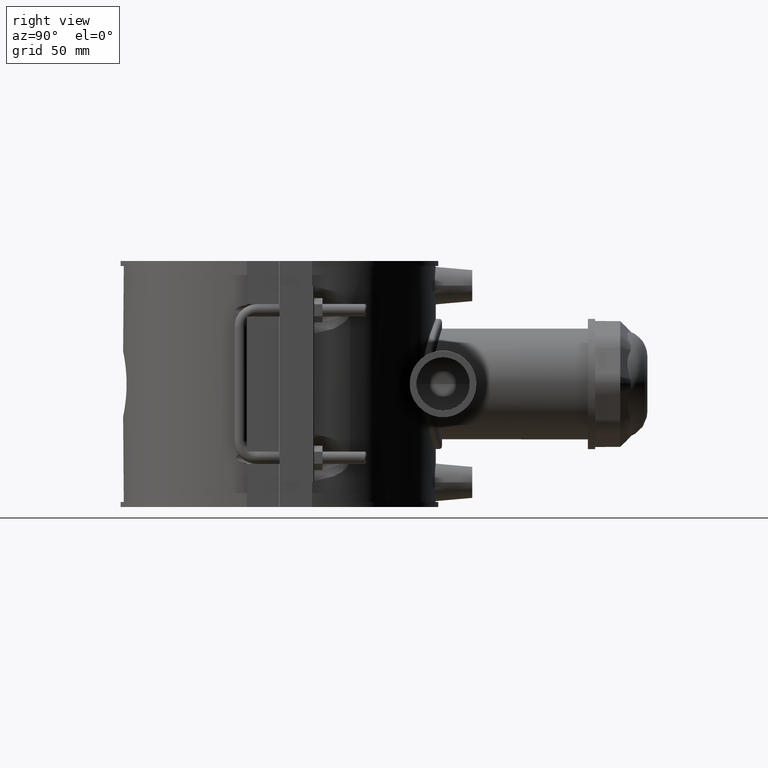
[diagram: clean part render]
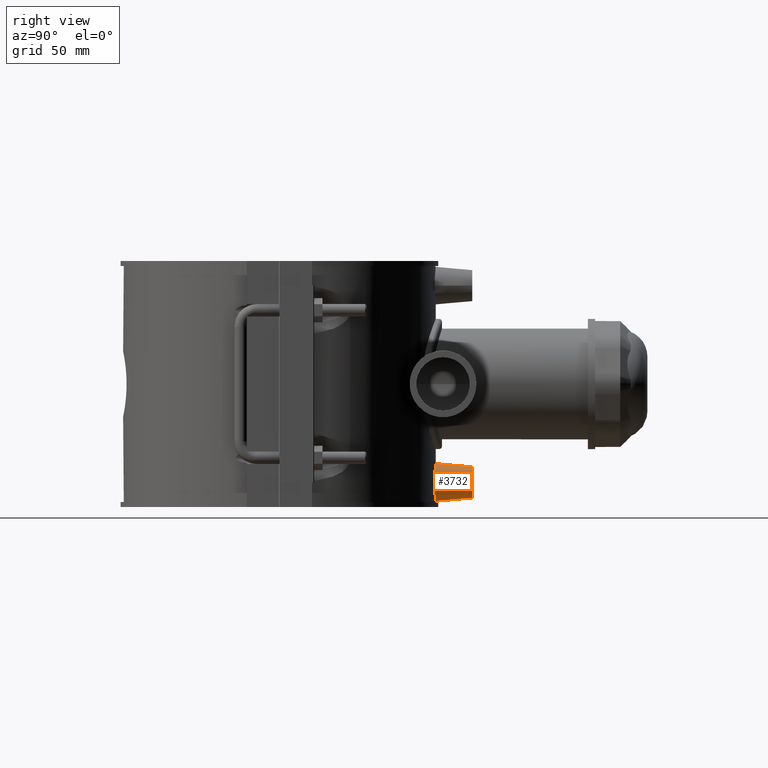
[diagram: same view with one face highlighted and labeled with its STEP entity id]
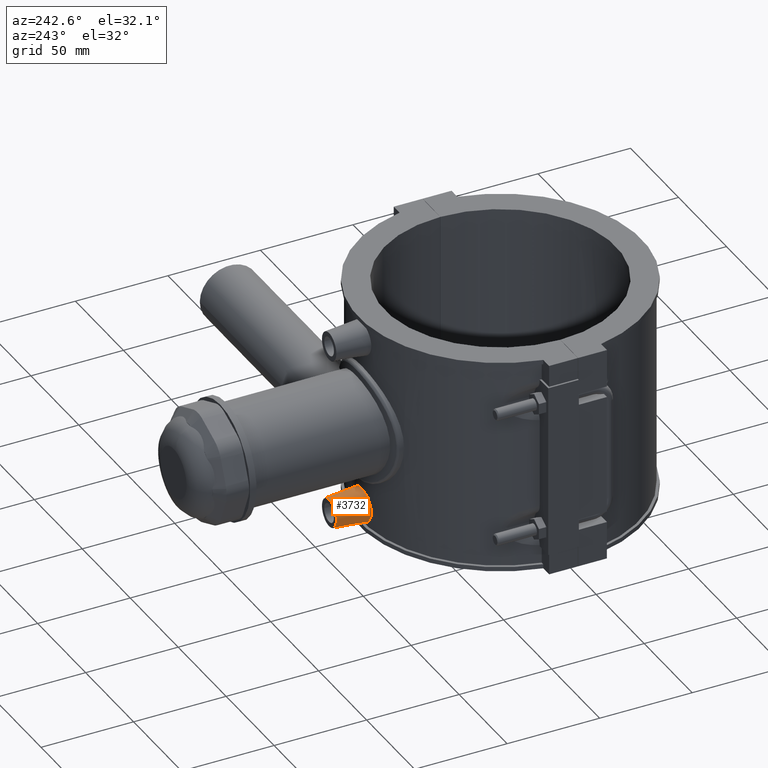
[diagram: same view with one face highlighted and labeled with its STEP entity id]
A machine part, right view. The second image highlights one B-rep face of the part: STEP entity #3732.
A second angle (auxiliary view) of the same face is appended — the face is thin or edge-on in the first view.
In plain terms, the highlighted conical surface has half-angle 5 deg.
Its self-contained STEP definition (entity closure, byte-faithful):
#652=CONICAL_SURFACE('',#4011,7.5,5.);
#854=CIRCLE('',#4010,7.5);
#933=FACE_BOUND('',#1336,.T.);
#1083=FACE_OUTER_BOUND('',#1335,.T.);
#1335=EDGE_LOOP('',(#3064));
#1336=EDGE_LOOP('',(#3065));
#1511=B_SPLINE_CURVE_WITH_KNOTS('',3,(#6287,#6288,#6289,#6290,#6291,#6292,
#6293,#6294,#6295,#6296,#6297,#6298,#6299,#6300,#6301,#6302,#6303,#6304,
#6305,#6306,#6307,#6308,#6309,#6310,#6311,#6312,#6313,#6314,#6315,#6316,
#6317,#6318,#6319,#6320),.UNSPECIFIED.,.T.,.F.,(4,2,2,2,2,2,2,2,2,2,2,2,
2,2,2,2,4),(0.,0.341668696491551,0.683337392983103,1.02458425500419,1.36583111702527,
1.70707797904636,2.04832484106744,2.38999353755899,2.73166223405054,3.0733309305421,
3.41499962703365,3.75624648905473,4.09749335107582,4.4387402130969,4.77998707511798,
5.12165577160954,5.46332446810109),.UNSPECIFIED.);
#1686=VERTEX_POINT('',#6286);
#1814=VERTEX_POINT('',#7365);
#2097=EDGE_CURVE('',#1686,#1686,#1511,.T.);
#2271=EDGE_CURVE('',#1814,#1814,#854,.T.);
#3064=ORIENTED_EDGE('',*,*,#2271,.T.);
#3065=ORIENTED_EDGE('',*,*,#2097,.F.);
#3732=ADVANCED_FACE('',(#1083,#933),#652,.T.);
#4010=AXIS2_PLACEMENT_3D('',#7366,#4713,#4714);
#4011=AXIS2_PLACEMENT_3D('',#7367,#4715,#4716);
#4713=DIRECTION('center_axis',(0.,-1.,0.));
#4714=DIRECTION('ref_axis',(1.,0.,0.));
#4715=DIRECTION('center_axis',(0.,-1.,0.));
#4716=DIRECTION('ref_axis',(1.,0.,0.));
#6286=CARTESIAN_POINT('',(9.0793092533136,74.4484126323906,-47.2));
#6287=CARTESIAN_POINT('Ctrl Pts',(9.0793092533136,74.4484126323906,-47.2));
#6288=CARTESIAN_POINT('Ctrl Pts',(9.0793092533136,74.4484126323906,-46.0611043450282));
#6289=CARTESIAN_POINT('Ctrl Pts',(8.84946113589686,74.4775577133318,-44.8478007545603));
#6290=CARTESIAN_POINT('Ctrl Pts',(7.91818152844378,74.5823166978625,-42.6193985559919));
#6291=CARTESIAN_POINT('Ctrl Pts',(7.21684973308405,74.6563698188581,-41.604185186368));
#6292=CARTESIAN_POINT('Ctrl Pts',(5.60331245542121,74.7947708340694,-40.0044126497905));
#6293=CARTESIAN_POINT('Ctrl Pts',(4.58361091651927,74.8681481668674,-39.3122964536791));
#6294=CARTESIAN_POINT('Ctrl Pts',(2.35073887920452,74.9714820813101,-38.3945491238737));
#6295=CARTESIAN_POINT('Ctrl Pts',(1.13748954007028,75.,-38.1689483882964));
#6296=CARTESIAN_POINT('Ctrl Pts',(-1.13748954007028,75.,-38.1689483882964));
#6297=CARTESIAN_POINT('Ctrl Pts',(-2.35073887920452,74.9714820813101,-38.3945491238737));
#6298=CARTESIAN_POINT('Ctrl Pts',(-4.58361091651926,74.8681481668674,-39.3122964536791));
#6299=CARTESIAN_POINT('Ctrl Pts',(-5.60331245542121,74.7947708340694,-40.0044126497905));
#6300=CARTESIAN_POINT('Ctrl Pts',(-7.21684973308405,74.6563698188581,-41.604185186368));
#6301=CARTESIAN_POINT('Ctrl Pts',(-7.91818152844378,74.5823166978625,-42.6193985559919));
#6302=CARTESIAN_POINT('Ctrl Pts',(-8.84946113589686,74.4775577133318,-44.8478007545603));
#6303=CARTESIAN_POINT('Ctrl Pts',(-9.0793092533136,74.4484126323906,-46.0611043450282));
#6304=CARTESIAN_POINT('Ctrl Pts',(-9.0793092533136,74.4484126323906,-48.3388956549719));
#6305=CARTESIAN_POINT('Ctrl Pts',(-8.84946113589685,74.4775577133318,-49.5521992454398));
#6306=CARTESIAN_POINT('Ctrl Pts',(-7.91818152844378,74.5823166978625,-51.7806014440082));
#6307=CARTESIAN_POINT('Ctrl Pts',(-7.21684973308406,74.6563698188581,-52.795814813632));
#6308=CARTESIAN_POINT('Ctrl Pts',(-5.60331245542121,74.7947708340694,-54.3955873502096));
#6309=CARTESIAN_POINT('Ctrl Pts',(-4.58361091651926,74.8681481668674,-55.0877035463209));
#6310=CARTESIAN_POINT('Ctrl Pts',(-2.35073887920452,74.9714820813101,-56.0054508761263));
#6311=CARTESIAN_POINT('Ctrl Pts',(-1.13748954007028,75.,-56.2310516117037));
#6312=CARTESIAN_POINT('Ctrl Pts',(1.13748954007028,75.,-56.2310516117037));
#6313=CARTESIAN_POINT('Ctrl Pts',(2.35073887920452,74.9714820813101,-56.0054508761263));
#6314=CARTESIAN_POINT('Ctrl Pts',(4.58361091651926,74.8681481668674,-55.0877035463209));
#6315=CARTESIAN_POINT('Ctrl Pts',(5.60331245542121,74.7947708340694,-54.3955873502096));
#6316=CARTESIAN_POINT('Ctrl Pts',(7.21684973308405,74.6563698188581,-52.795814813632));
#6317=CARTESIAN_POINT('Ctrl Pts',(7.91818152844378,74.5823166978625,-51.7806014440082));
#6318=CARTESIAN_POINT('Ctrl Pts',(8.84946113589685,74.4775577133318,-49.5521992454398));
#6319=CARTESIAN_POINT('Ctrl Pts',(9.0793092533136,74.4484126323906,-48.3388956549719));
#6320=CARTESIAN_POINT('Ctrl Pts',(9.0793092533136,74.4484126323906,-47.2));
#7365=CARTESIAN_POINT('',(-7.5,92.5,-47.2));
#7366=CARTESIAN_POINT('Origin',(0.,92.5,-47.2));
#7367=CARTESIAN_POINT('Origin',(0.,92.5,-47.2));